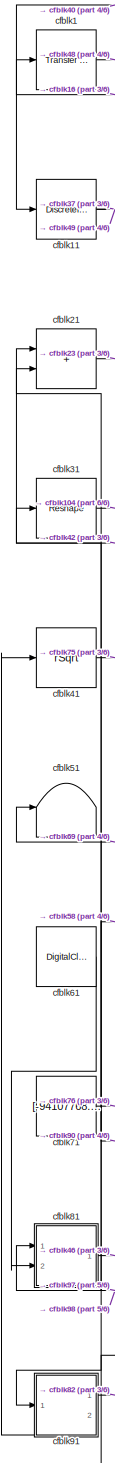
[diagram: root canvas - part 1/6, left side, full height]
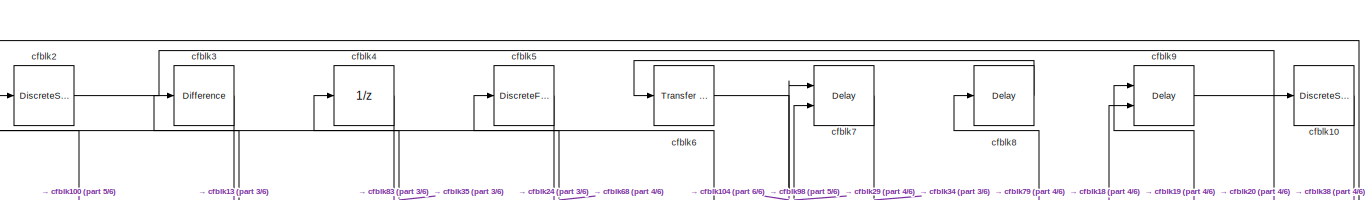
[diagram: root canvas - part 2/6, full width, top band]
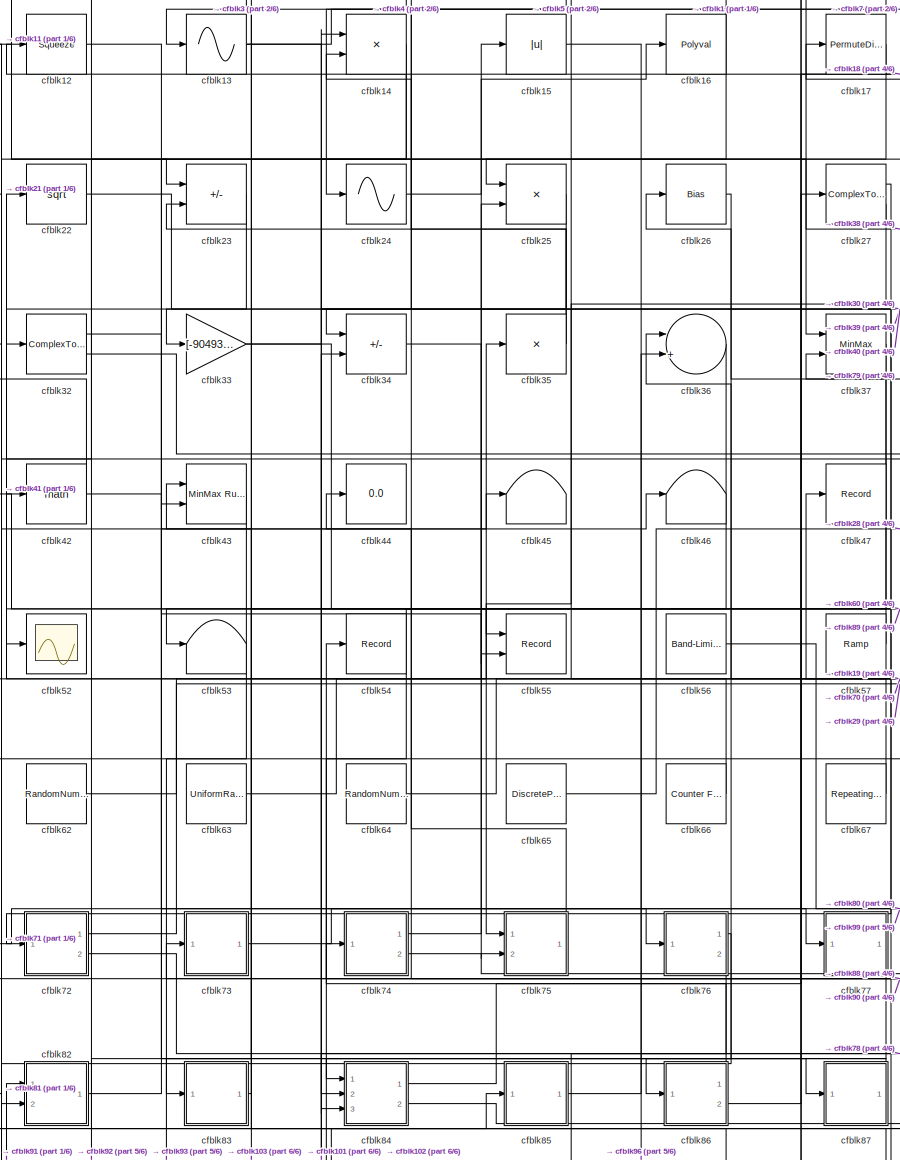
[diagram: root canvas - part 3/6, central region]
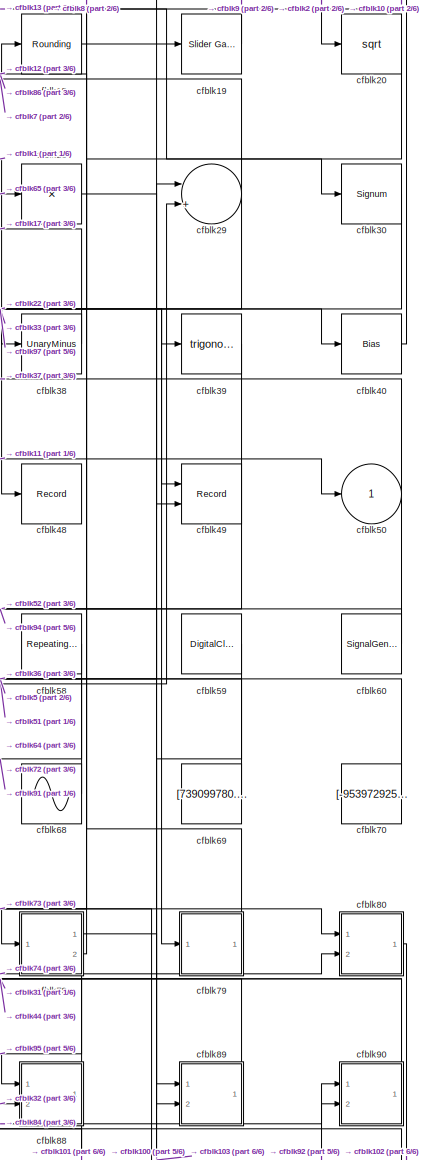
[diagram: root canvas - part 4/6, middle right region]
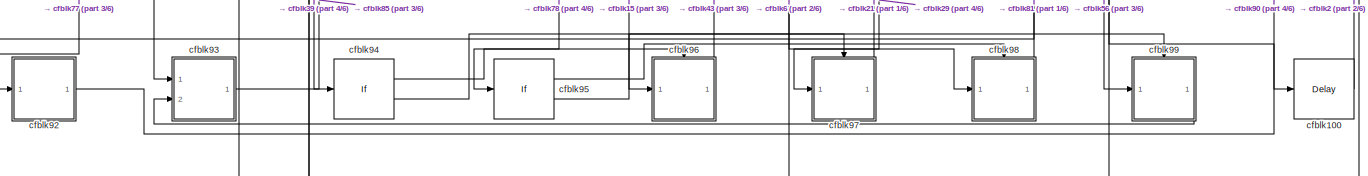
[diagram: root canvas - part 5/6, full width, bottom band]
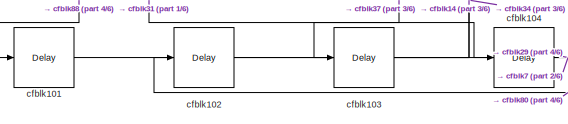
[diagram: root canvas - part 6/6, bottom left region]
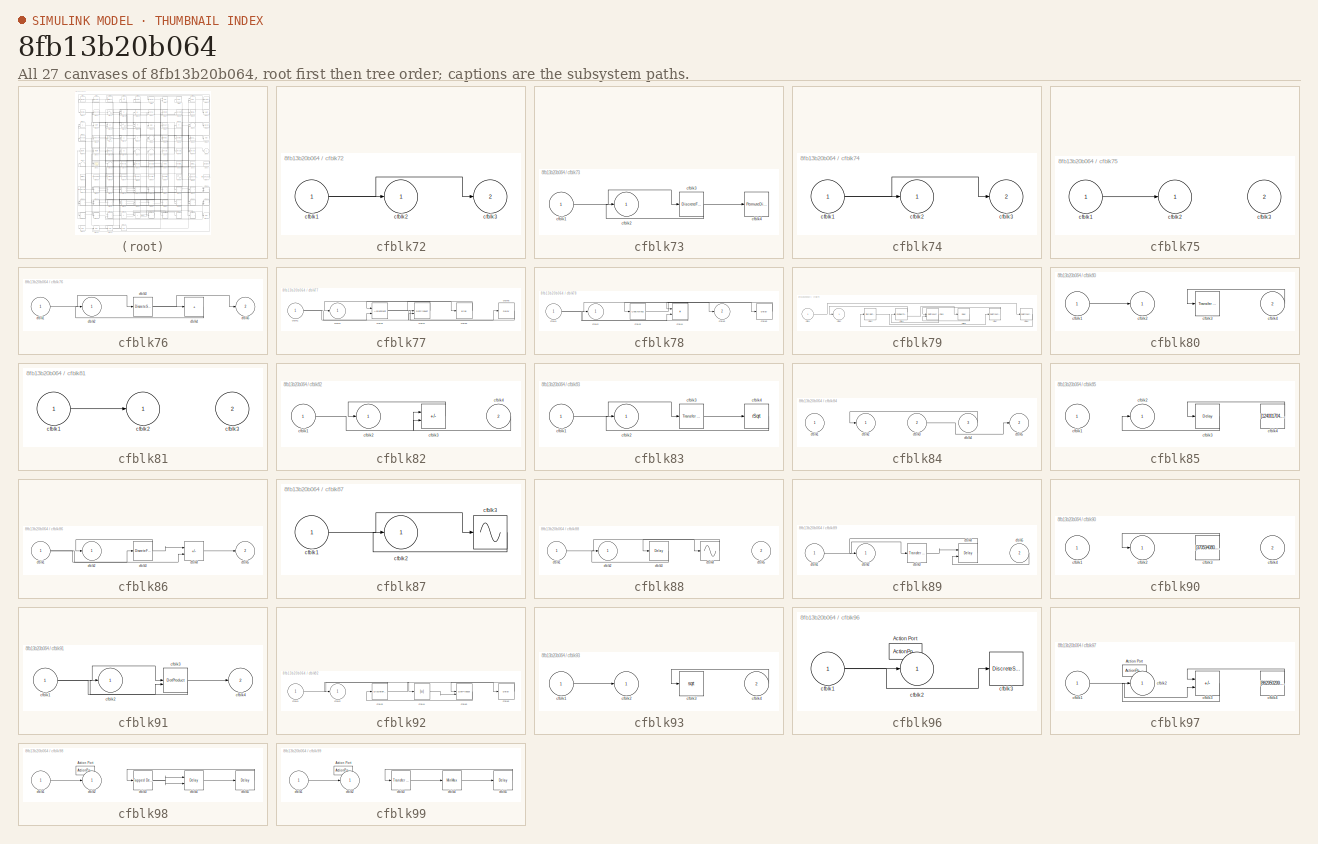
[diagram: thumbnail index - all 27 canvases of the model, root first then tree order]
MODEL slx_8fb13b20b064
KIND model
CONFIG AbsTol = auto
CONFIG EnableMultiTasking = off
CONFIG FixedStep = auto
CONFIG MaxStep = auto
CONFIG MinStep = auto
CONFIG RelTol = 1e-3
CONFIG SampleTimeConstraint = Unconstrained
CONFIG SolverName = VariableStepAuto
CONFIG StartTime = 0.0
CONFIG StopTime = 10.0
BLOCK [Reference] cfblk1  REF=simulink/Discrete/Transfer Fcn
Real Zero
  Ports = [1, 1]
  SourceBlock = simulink/Discrete/Transfer Fcn\nReal Zero
  SourceProductBaseCode = SL
  SourceType = Transfer Fcn Real Zero
BLOCK [DiscreteStateSpace] cfblk10
BLOCK [Delay] cfblk100
  InputPortMap = u0
  Ports = [1, 1]
  SampleTime = 1
BLOCK [Delay] cfblk101
  InputPortMap = u0
  Ports = [1, 1]
  SampleTime = 1
BLOCK [Delay] cfblk102
  InputPortMap = u0
  Ports = [1, 1]
  SampleTime = 1
BLOCK [Delay] cfblk103
  InputPortMap = u0
  Ports = [1, 1]
  SampleTime = 1
BLOCK [Delay] cfblk104
  InputPortMap = u0
  Ports = [1, 1]
  SampleTime = 1
BLOCK [DiscreteIntegrator] cfblk11
  ICPrevOutput = DiscIntNeverNeededParam
  ICPrevScaledInput = DiscIntNeverNeededParam
  InitialConditionSetting = Auto
  Ports = [1, 1]
BLOCK [Squeeze] cfblk12
BLOCK [Sin] cfblk13
  Ports = [1, 1]
  SampleTime = 0
  TimeSource = Use external signal
BLOCK [Product] cfblk14
  Ports = [2, 1]
BLOCK [Abs] cfblk15
  SaturateOnIntegerOverflow = off
BLOCK [Polyval] cfblk16
  Coefs = [ +2.081618890e-019, -1.441693666e-014, +4.719686976e-010, -8.536869453e-006, +1.621573104e-001, -8.087801117e+001 ]
BLOCK [PermuteDimensions] cfblk17
BLOCK [Rounding] cfblk18
BLOCK [Reference] cfblk19  REF=simulink/Math
Operations/Slider
Gain
  Ports = [1, 1]
  SourceBlock = simulink/Math\nOperations/Slider\nGain
  SourceProductBaseCode = SL
  SourceType = Slider Gain
BLOCK [DiscreteStateSpace] cfblk2
BLOCK [Sqrt] cfblk20
BLOCK [Sum] cfblk21
  IconShape = rectangular
  Ports = [2, 1]
BLOCK [Sqrt] cfblk22
BLOCK [Sum] cfblk23
  IconShape = rectangular
  Inputs = +-
  Ports = [2, 1]
BLOCK [Sin] cfblk24
  Ports = [1, 1]
  SampleTime = 0
  TimeSource = Use external signal
BLOCK [Product] cfblk25
  Inputs = **
  Ports = [2, 1]
BLOCK [Bias] cfblk26
  Bias = [244057580.734681]
  SaturateOnIntegerOverflow = off
BLOCK [ComplexToMagnitudeAngle] cfblk27
  Ports = [1, 2]
BLOCK [Product] cfblk28
  Inputs = *
  Ports = [1, 1]
BLOCK [Sum] cfblk29
  Inputs = |++
  Ports = [2, 1]
BLOCK [Reference] cfblk3  REF=simulink/Discrete/Difference
  Ports = [1, 1]
  SourceBlock = simulink/Discrete/Difference
  SourceProductBaseCode = SL
  SourceType = Difference
BLOCK [Signum] cfblk30
BLOCK [Reshape] cfblk31
  Ports = [1, 1]
BLOCK [ComplexToMagnitudeAngle] cfblk32
  Ports = [1, 2]
BLOCK [Gain] cfblk33
  Gain = [-904931611.617092]
BLOCK [Sum] cfblk34
  IconShape = rectangular
  Inputs = -+
  Ports = [2, 1]
BLOCK [Product] cfblk35
  Inputs = *
  Ports = [1, 1]
BLOCK [Sum] cfblk36
  Inputs = |++
  Ports = [2, 1]
BLOCK [MinMax] cfblk37
  Function = max
  Inputs = 2
  Ports = [2, 1]
BLOCK [UnaryMinus] cfblk38
BLOCK [Trigonometry] cfblk39
  Ports = [1, 1]
BLOCK [UnitDelay] cfblk4
  HasFrameUpgradeWarning = on
BLOCK [Bias] cfblk40
  Bias = [435474135.842654]
  SaturateOnIntegerOverflow = off
BLOCK [Sqrt] cfblk41
  AlgorithmType = Newton-Raphson
  Operator = rSqrt
BLOCK [Math] cfblk42
  Ports = [1, 1]
BLOCK [Reference] cfblk43  REF=simulink/Math
Operations/MinMax
Running
Resettable
  Ports = [2, 1]
  SourceBlock = simulink/Math\nOperations/MinMax\nRunning\nResettable
  SourceProductBaseCode = SL
  SourceType = MinMax Running Resettable
BLOCK [Display] cfblk44
  Decimation = 1
  Ports = [1]
BLOCK [Terminator] cfblk45
BLOCK [Terminator] cfblk46
BLOCK [Record] cfblk47
  FileSettingsInternal = {"entries":[{"content":{"excelSettings":{"content":{},"type":"Streamout.ExcelSettings"}},"type":"Streamout.FileSettingStorage","uuid":"f3e6356d-f438-4730-ad7d-e3ec913a7e49"}],"packageUris":["http://schema.mathworks.com/mf0/streamout_blocks/R2020a"],"version":"1.0"}
  Ports = [1]
  SignalsInternal = {"entries":[{"content":{"signals":[{"content":{"blockPath":["sampleModel18/cfblk47"],"channel":[],"dimensions":[1],"domain":"sampleModel18/cfblk47","lineColor":"#a2142f","plots":[1],"port":1,"sid":[""],"signalID":754,"signalName":"cfblk67"},"type":"RecordBlkView.Signal","uuid":"009bd073-cccd-4c9b-abca-75d434df984e"}]},"type":"RecordBlkView.InputSignals","uuid":"1139e3b9-48b1-4a59-a758-ea53e15d3541...<+94ch>
  VisualizationBindings = {"sparklinesplugin":{"info":[{"bindingParametersList":[],"subplotID":1}]}}
BLOCK [Record] cfblk48
  FileSettingsInternal = {"entries":[{"content":{"excelSettings":{"content":{},"type":"Streamout.ExcelSettings"}},"type":"Streamout.FileSettingStorage","uuid":"b3cbeff4-dd58-4c58-a9d8-50ed42b7b65e"}],"packageUris":["http://schema.mathworks.com/mf0/streamout_blocks/R2020a"],"version":"1.0"}
  Ports = [1]
  SignalsInternal = {"entries":[{"content":{"signals":[{"content":{"blockPath":["sampleModel18/cfblk48"],"channel":[],"dimensions":[1],"domain":"sampleModel18/cfblk48","lineColor":"#0072bd","plots":[1],"port":1,"sid":[""],"signalID":730,"signalName":"cfblk1"},"type":"RecordBlkView.Signal","uuid":"f6598a59-ba5a-4366-a23e-158faba5df51"}]},"type":"RecordBlkView.InputSignals","uuid":"46017d82-f691-4fab-a069-d9b27c99119e"...<+93ch>
  VisualizationBindings = {"sparklinesplugin":{"info":[{"bindingParametersList":[],"subplotID":1}]}}
BLOCK [Record] cfblk49
  CompatibilityTag = XY
  FileSettingsInternal = {"entries":[{"content":{"excelSettings":{"content":{},"type":"Streamout.ExcelSettings"}},"type":"Streamout.FileSettingStorage","uuid":"12659b71-1fa3-4812-95e2-9d23bc298638"}],"packageUris":["http://schema.mathworks.com/mf0/streamout_blocks/R2020a"],"version":"1.0"}
  Layout = [1 1]
  Ports = [2]
  SignalsInternal = {"entries":[{"content":{"signals":[{"content":{"blockPath":["sampleModel18/cfblk49"],"channel":[],"dimensions":[1],"domain":"sampleModel18/cfblk49","lineColor":"#a2142f","plots":[1],"port":1,"sid":[""],"signalID":734,"signalName":"cfblk30"},"type":"RecordBlkView.Signal","uuid":"b456594d-3354-477f-bd82-e2a85ebed91f"},{"content":{"blockPath":["sampleModel18/cfblk49"],"channel":[],"dimensions":[1],"d...<+377ch>
  VisualizationBindings = {"xyplotplugin":{"info":[{"series":[{"bindingParametersList":[{"parameter":"X-Axis","signalID":734,"signalName":"cfblk30"},{"parameter":"Y-Axis","signalID":738,"signalName":"cfblk11"}],"seriesID":48500}],"subplotID":1}]}}
BLOCK [DiscreteFir] cfblk5
  InputPortMap = u0
  OutputPortMap = o0
  Ports = [1, 1]
  SampleTime = 1
BLOCK [Outport] cfblk50
BLOCK [Terminator] cfblk51
BLOCK [Scope] cfblk52
  Floating = off
  NumInputPorts = 1
  Ports = [1]
BLOCK [Terminator] cfblk53
BLOCK [Record] cfblk54
  FileSettingsInternal = {"entries":[{"content":{"excelSettings":{"content":{},"type":"Streamout.ExcelSettings"}},"type":"Streamout.FileSettingStorage","uuid":"8c2c62a5-b023-49fb-ade8-a6f0d940a0a6"}],"packageUris":["http://schema.mathworks.com/mf0/streamout_blocks/R2020a"],"version":"1.0"}
  Ports = [1]
  SignalsInternal = {"entries":[{"content":{"signals":[{"content":{"blockPath":["sampleModel18/cfblk54"],"channel":[],"dimensions":[1],"domain":"sampleModel18/cfblk54","lineColor":"#7e2f8e","plots":[1],"port":1,"sid":[""],"signalID":742,"signalName":"cfblk86:1"},"type":"RecordBlkView.Signal","uuid":"cc341828-7772-4fc4-82af-9fa621df96af"}]},"type":"RecordBlkView.InputSignals","uuid":"70a7ec1d-eb72-4259-b67c-d21e35d600...<+96ch>
  VisualizationBindings = {"sparklinesplugin":{"info":[{"bindingParametersList":[],"subplotID":1}]}}
BLOCK [Record] cfblk55
  CompatibilityTag = XY
  FileSettingsInternal = {"entries":[{"content":{"excelSettings":{"content":{},"type":"Streamout.ExcelSettings"}},"type":"Streamout.FileSettingStorage","uuid":"f3fc9ddd-07fd-4d00-b488-08ffa401512c"}],"packageUris":["http://schema.mathworks.com/mf0/streamout_blocks/R2020a"],"version":"1.0"}
  Layout = [1 1]
  Ports = [2]
  SignalsInternal = {"entries":[{"content":{"signals":[{"content":{"blockPath":["sampleModel18/cfblk55"],"channel":[],"dimensions":[1],"domain":"sampleModel18/cfblk55","lineColor":"#a2142f","plots":[1],"port":1,"sid":[""],"signalID":746,"signalName":"cfblk27:2"},"type":"RecordBlkView.Signal","uuid":"ca97d49d-bb3e-4e8a-9ea8-1175d8ca5de3"},{"content":{"blockPath":["sampleModel18/cfblk55"],"channel":[],"dimensions":[1,1...<+383ch>
  VisualizationBindings = {"xyplotplugin":{"info":[{"series":[{"bindingParametersList":[{"parameter":"X-Axis","signalID":746,"signalName":"cfblk27:2"},{"parameter":"Y-Axis","signalID":750,"signalName":"cfblk32:1"}],"seriesID":32887}],"subplotID":1}]}}
BLOCK [Reference] cfblk56  REF=simulink/Sources/Band-Limited
White Noise
  Ports = [0, 1]
  SourceBlock = simulink/Sources/Band-Limited\nWhite Noise
  SourceProductBaseCode = SL
  SourceType = Band-Limited White Noise.
BLOCK [Reference] cfblk57  REF=simulink/Sources/Ramp
  Ports = [0, 1]
  SourceBlock = simulink/Sources/Ramp
  SourceProductBaseCode = SL
  SourceType = Ramp
BLOCK [Reference] cfblk58  REF=simulink/Sources/Repeating
Sequence
  Ports = [0, 1]
  SourceBlock = simulink/Sources/Repeating\nSequence
  SourceProductBaseCode = SL
  SourceType = Repeating table
BLOCK [DigitalClock] cfblk59
BLOCK [Reference] cfblk6  REF=simulink/Discrete/Transfer Fcn
Real Zero
  Ports = [1, 1]
  SourceBlock = simulink/Discrete/Transfer Fcn\nReal Zero
  SourceProductBaseCode = SL
  SourceType = Transfer Fcn Real Zero
BLOCK [SignalGenerator] cfblk60
  Amplitude = [43764762.818563]
  Ports = [0, 1]
  Units = rad/sec
  WaveForm = sawtooth
BLOCK [DigitalClock] cfblk61
BLOCK [RandomNumber] cfblk62
  Mean = [-16646.859650]
  SampleTime = 0.1
  Seed = [598100317.000000]
  Variance = [28029.286662]
BLOCK [UniformRandomNumber] cfblk63
  Maximum = [636865030.513627]
  Minimum = [-9635251432.988684]
  SampleTime = 0.1
  Seed = [32288251.000000]
BLOCK [RandomNumber] cfblk64
  Mean = [-80324.293923]
  SampleTime = 0.1
  Seed = [371163799.000000]
  Variance = [17004.462627]
BLOCK [DiscretePulseGenerator] cfblk65
  Amplitude = [-920476754.757523]
  Period = [70924095.644116]
  PhaseDelay = [6.000000]
  Ports = [0, 1]
  PulseType = Time based
  PulseWidth = 5
BLOCK [Reference] cfblk66  REF=simulink/Sources/Counter
Free-Running
  Ports = [0, 1]
  SourceBlock = simulink/Sources/Counter\nFree-Running
  SourceProductBaseCode = SL
  SourceType = Counter Free-Running
BLOCK [Reference] cfblk67  REF=simulink/Sources/Repeating
Sequence
Stair
  Ports = [0, 1]
  SourceBlock = simulink/Sources/Repeating\nSequence\nStair
  SourceProductBaseCode = SL
  SourceType = Repeating Sequence Stair
BLOCK [Sin] cfblk68
  Amplitude = [-73874148.181670]
  Bias = [-594651401.125389]
  Ports = [0, 1]
  SampleTime = 0
BLOCK [Constant] cfblk69
  SampleTime = 1
  Value = [739099780.098286]
BLOCK [Delay] cfblk7
  InputPortMap = u0,e6
  Ports = [2, 1]
  SampleTime = 1
  ShowEnablePort = on
BLOCK [Constant] cfblk70
  SampleTime = 1
  Value = [-953972925.817118]
BLOCK [Constant] cfblk71
  SampleTime = 1
  Value = [-94107768.657011]
BLOCK [SubSystem] cfblk72
  Ports = [1, 2]
  RequestExecContextInheritance = off
BLOCK [Inport] cfblk72/cfblk1
BLOCK [Outport] cfblk72/cfblk2
BLOCK [Outport] cfblk72/cfblk3
  Port = 2
BLOCK [SubSystem] cfblk73
  Ports = [1, 1]
  RequestExecContextInheritance = off
BLOCK [Inport] cfblk73/cfblk1
BLOCK [Outport] cfblk73/cfblk2
BLOCK [DiscreteFilter] cfblk73/cfblk3
  InputPortMap = u0
  Ports = [1, 1]
  SampleTime = 1
BLOCK [PermuteDimensions] cfblk73/cfblk4
BLOCK [SubSystem] cfblk74
  Ports = [1, 2]
  RequestExecContextInheritance = off
BLOCK [Inport] cfblk74/cfblk1
BLOCK [Outport] cfblk74/cfblk2
BLOCK [Outport] cfblk74/cfblk3
  Port = 2
BLOCK [SubSystem] cfblk75
  Ports = [2, 1]
  RequestExecContextInheritance = off
BLOCK [Inport] cfblk75/cfblk1
BLOCK [Outport] cfblk75/cfblk2
BLOCK [Inport] cfblk75/cfblk3
  Port = 2
BLOCK [SubSystem] cfblk76
  Ports = [1, 2]
  RequestExecContextInheritance = off
BLOCK [Inport] cfblk76/cfblk1
BLOCK [Outport] cfblk76/cfblk2
BLOCK [DiscreteStateSpace] cfblk76/cfblk3
BLOCK [Sum] cfblk76/cfblk4
  IconShape = rectangular
  Inputs = +
  Ports = [1, 1]
BLOCK [Outport] cfblk76/cfblk5
  Port = 2
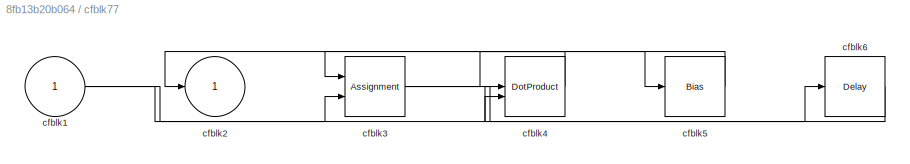
BLOCK [SubSystem] cfblk77
  Ports = [1, 1]
  RequestExecContextInheritance = off
BLOCK [Inport] cfblk77/cfblk1
BLOCK [Outport] cfblk77/cfblk2
BLOCK [Assignment] cfblk77/cfblk3
  DiagnosticForDimensions = Warning
  IndexOptions = Index vector (dialog)
  Indices = 1
  OutputSizes = 1
  Ports = [2, 1]
BLOCK [DotProduct] cfblk77/cfblk4
  OutDataTypeStr = Inherit: Inherit via internal rule
BLOCK [Bias] cfblk77/cfblk5
  Bias = [780550911.093952]
  SaturateOnIntegerOverflow = off
BLOCK [Delay] cfblk77/cfblk6
  InputPortMap = u0
  Ports = [1, 1]
  SampleTime = 1
BLOCK [SubSystem] cfblk78
  Ports = [1, 2]
  RequestExecContextInheritance = off
BLOCK [Inport] cfblk78/cfblk1
BLOCK [Outport] cfblk78/cfblk2
BLOCK [UnaryMinus] cfblk78/cfblk3
BLOCK [Product] cfblk78/cfblk4
  Ports = [2, 1]
BLOCK [Outport] cfblk78/cfblk5
  Port = 2
BLOCK [Delay] cfblk78/cfblk6
  InputPortMap = u0
  Ports = [1, 1]
  SampleTime = 1
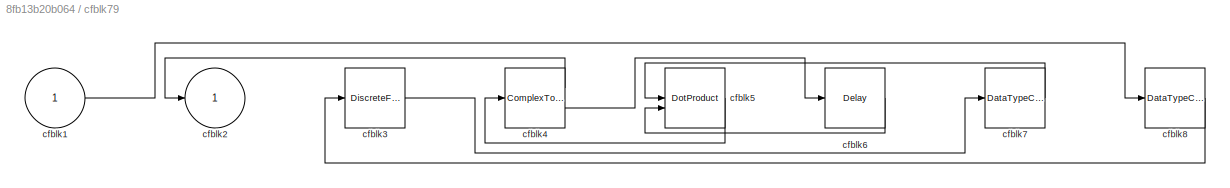
BLOCK [SubSystem] cfblk79
  Ports = [1, 1]
  RequestExecContextInheritance = off
BLOCK [Inport] cfblk79/cfblk1
BLOCK [Outport] cfblk79/cfblk2
BLOCK [DiscreteFilter] cfblk79/cfblk3
  InputPortMap = u0
  Ports = [1, 1]
  SampleTime = 1
BLOCK [ComplexToMagnitudeAngle] cfblk79/cfblk4
  Ports = [1, 2]
BLOCK [DotProduct] cfblk79/cfblk5
  OutDataTypeStr = Inherit: Inherit via internal rule
BLOCK [Delay] cfblk79/cfblk6
  InputPortMap = u0
  Ports = [1, 1]
  SampleTime = 1
BLOCK [DataTypeConversion] cfblk79/cfblk7
  RndMeth = Floor
  SaturateOnIntegerOverflow = off
BLOCK [DataTypeConversion] cfblk79/cfblk8
  RndMeth = Floor
  SaturateOnIntegerOverflow = off
BLOCK [Delay] cfblk8
  InputPortMap = u0
  Ports = [1, 1]
  SampleTime = 1
BLOCK [SubSystem] cfblk80
  Ports = [2, 1]
  RequestExecContextInheritance = off
BLOCK [Inport] cfblk80/cfblk1
BLOCK [Outport] cfblk80/cfblk2
BLOCK [Reference] cfblk80/cfblk3  REF=simulink/Discrete/Transfer Fcn
Real Zero
  Ports = [1, 1]
  SourceBlock = simulink/Discrete/Transfer Fcn\nReal Zero
  SourceProductBaseCode = SL
  SourceType = Transfer Fcn Real Zero
BLOCK [Inport] cfblk80/cfblk4
  Port = 2
BLOCK [SubSystem] cfblk81
  Ports = [2, 1]
  RequestExecContextInheritance = off
BLOCK [Inport] cfblk81/cfblk1
BLOCK [Outport] cfblk81/cfblk2
BLOCK [Inport] cfblk81/cfblk3
  Port = 2
BLOCK [SubSystem] cfblk82
  Ports = [2, 1]
  RequestExecContextInheritance = off
BLOCK [Inport] cfblk82/cfblk1
BLOCK [Outport] cfblk82/cfblk2
BLOCK [Sum] cfblk82/cfblk3
  IconShape = rectangular
  Inputs = --
  Ports = [2, 1]
BLOCK [Inport] cfblk82/cfblk4
  Port = 2
BLOCK [SubSystem] cfblk83
  Ports = [1, 1]
  RequestExecContextInheritance = off
BLOCK [Inport] cfblk83/cfblk1
BLOCK [Outport] cfblk83/cfblk2
BLOCK [Reference] cfblk83/cfblk3  REF=simulink/Discrete/Transfer Fcn
Real Zero
  Ports = [1, 1]
  SourceBlock = simulink/Discrete/Transfer Fcn\nReal Zero
  SourceProductBaseCode = SL
  SourceType = Transfer Fcn Real Zero
BLOCK [Sqrt] cfblk83/cfblk4
  AlgorithmType = Newton-Raphson
  Operator = rSqrt
BLOCK [SubSystem] cfblk84
  Ports = [3, 2]
  RequestExecContextInheritance = off
BLOCK [Inport] cfblk84/cfblk1
BLOCK [Outport] cfblk84/cfblk2
BLOCK [Inport] cfblk84/cfblk3
  Port = 2
BLOCK [Inport] cfblk84/cfblk4
  Port = 3
BLOCK [Outport] cfblk84/cfblk5
  Port = 2
BLOCK [SubSystem] cfblk85
  Ports = [1, 1]
  RequestExecContextInheritance = off
BLOCK [Inport] cfblk85/cfblk1
BLOCK [Outport] cfblk85/cfblk2
BLOCK [Delay] cfblk85/cfblk3
  InputPortMap = u0
  Ports = [1, 1]
  SampleTime = 1
BLOCK [Constant] cfblk85/cfblk4
  SampleTime = 1
  Value = [124001704.281891]
BLOCK [SubSystem] cfblk86
  Ports = [1, 2]
  RequestExecContextInheritance = off
BLOCK [Inport] cfblk86/cfblk1
BLOCK [Outport] cfblk86/cfblk2
BLOCK [DiscreteFilter] cfblk86/cfblk3
  InputPortMap = u0
  Ports = [1, 1]
  SampleTime = 1
BLOCK [Sum] cfblk86/cfblk4
  IconShape = rectangular
  Inputs = --
  Ports = [2, 1]
BLOCK [Outport] cfblk86/cfblk5
  Port = 2
BLOCK [SubSystem] cfblk87
  Ports = [1, 1]
  RequestExecContextInheritance = off
BLOCK [Inport] cfblk87/cfblk1
BLOCK [Outport] cfblk87/cfblk2
BLOCK [Sin] cfblk87/cfblk3
  Ports = [1, 1]
  SampleTime = 0
  TimeSource = Use external signal
BLOCK [SubSystem] cfblk88
  Ports = [2, 1]
  RequestExecContextInheritance = off
BLOCK [Inport] cfblk88/cfblk1
BLOCK [Outport] cfblk88/cfblk2
BLOCK [Delay] cfblk88/cfblk3
  InputPortMap = u0
  Ports = [1, 1]
  SampleTime = 1
BLOCK [Sin] cfblk88/cfblk4
  Ports = [1, 1]
  SampleTime = 0
  TimeSource = Use external signal
BLOCK [Inport] cfblk88/cfblk5
  Port = 2
BLOCK [SubSystem] cfblk89
  Ports = [2, 1]
  RequestExecContextInheritance = off
BLOCK [Inport] cfblk89/cfblk1
BLOCK [Outport] cfblk89/cfblk2
BLOCK [Reference] cfblk89/cfblk3  REF=simulink/Discrete/Transfer Fcn
Real Zero
  Ports = [1, 1]
  SourceBlock = simulink/Discrete/Transfer Fcn\nReal Zero
  SourceProductBaseCode = SL
  SourceType = Transfer Fcn Real Zero
BLOCK [Delay] cfblk89/cfblk4
  InputPortMap = u0,e6
  Ports = [2, 1]
  SampleTime = 1
  ShowEnablePort = on
BLOCK [Inport] cfblk89/cfblk5
  Port = 2
BLOCK [Delay] cfblk9
  DelayLengthSource = Input port
  InputPortMap = u0,p1
  Ports = [2, 1]
  SampleTime = 1
BLOCK [SubSystem] cfblk90
  Ports = [2, 1]
  RequestExecContextInheritance = off
BLOCK [Inport] cfblk90/cfblk1
BLOCK [Outport] cfblk90/cfblk2
BLOCK [Constant] cfblk90/cfblk3
  SampleTime = 1
  Value = [370534080.999301]
BLOCK [Inport] cfblk90/cfblk4
  Port = 2
BLOCK [SubSystem] cfblk91
  Ports = [1, 2]
  RequestExecContextInheritance = off
BLOCK [Inport] cfblk91/cfblk1
BLOCK [Outport] cfblk91/cfblk2
BLOCK [DotProduct] cfblk91/cfblk3
  OutDataTypeStr = Inherit: Inherit via internal rule
BLOCK [Outport] cfblk91/cfblk4
  Port = 2
BLOCK [SubSystem] cfblk92
  Ports = [1, 1]
  RequestExecContextInheritance = off
BLOCK [Inport] cfblk92/cfblk1
BLOCK [Outport] cfblk92/cfblk2
BLOCK [DiscreteFir] cfblk92/cfblk3
  InputPortMap = u0
  OutputPortMap = o0
  Ports = [1, 1]
  SampleTime = 1
BLOCK [Abs] cfblk92/cfblk4
  SaturateOnIntegerOverflow = off
BLOCK [DotProduct] cfblk92/cfblk5
  OutDataTypeStr = Inherit: Inherit via internal rule
BLOCK [Delay] cfblk92/cfblk6
  InputPortMap = u0
  Ports = [1, 1]
  SampleTime = 1
BLOCK [SubSystem] cfblk93
  Ports = [2, 1]
  RequestExecContextInheritance = off
BLOCK [Inport] cfblk93/cfblk1
BLOCK [Outport] cfblk93/cfblk2
BLOCK [Sqrt] cfblk93/cfblk3
BLOCK [Inport] cfblk93/cfblk4
  Port = 2
BLOCK [If] cfblk94
  IfExpression = u1 >= 0
  Ports = [1, 2]
  SampleTime = 1
BLOCK [If] cfblk95
  IfExpression = u1 >= 0
  Ports = [1, 2]
  SampleTime = 1
BLOCK [SubSystem] cfblk96
  Ports = [1, 1, 0, 0, 0, 0, 0, 1]
  RequestExecContextInheritance = off
  TreatAsAtomicUnit = on
BLOCK [ActionPort] cfblk96/Action Port
  ActionPortLabel = if(u1 >= 0)
BLOCK [Inport] cfblk96/cfblk1
BLOCK [Outport] cfblk96/cfblk2
BLOCK [DiscreteStateSpace] cfblk96/cfblk3
  SampleTime = -1
BLOCK [SubSystem] cfblk97
  Ports = [1, 1, 0, 0, 0, 0, 0, 1]
  RequestExecContextInheritance = off
  TreatAsAtomicUnit = on
BLOCK [ActionPort] cfblk97/Action Port
  ActionPortLabel = else
BLOCK [Inport] cfblk97/cfblk1
BLOCK [Outport] cfblk97/cfblk2
BLOCK [Sum] cfblk97/cfblk3
  IconShape = rectangular
  Inputs = +-
  Ports = [2, 1]
BLOCK [Constant] cfblk97/cfblk4
  SampleTime = 1
  Value = [862950299.846338]
BLOCK [SubSystem] cfblk98
  Ports = [1, 1, 0, 0, 0, 0, 0, 1]
  RequestExecContextInheritance = off
  TreatAsAtomicUnit = on
BLOCK [ActionPort] cfblk98/Action Port
  ActionPortLabel = if(u1 >= 0)
BLOCK [Inport] cfblk98/cfblk1
BLOCK [Outport] cfblk98/cfblk2
BLOCK [Reference] cfblk98/cfblk3  REF=simulink/Discrete/Tapped Delay
  Ports = [1, 1]
  SourceBlock = simulink/Discrete/Tapped Delay
  SourceProductBaseCode = SL
  SourceType = Tapped Delay Line
BLOCK [Delay] cfblk98/cfblk4
  InputPortMap = u0,e6
  Ports = [2, 1]
  ShowEnablePort = on
BLOCK [Delay] cfblk98/cfblk5
  InputPortMap = u0
  Ports = [1, 1]
BLOCK [SubSystem] cfblk99
  Ports = [1, 1, 0, 0, 0, 0, 0, 1]
  RequestExecContextInheritance = off
  TreatAsAtomicUnit = on
BLOCK [ActionPort] cfblk99/Action Port
  ActionPortLabel = else
BLOCK [Inport] cfblk99/cfblk1
BLOCK [Outport] cfblk99/cfblk2
BLOCK [Reference] cfblk99/cfblk3  REF=simulink/Discrete/Transfer Fcn
First Order
  Ports = [1, 1]
  SourceBlock = simulink/Discrete/Transfer Fcn\nFirst Order
  SourceProductBaseCode = SL
  SourceType = First Order Transfer Fcn
BLOCK [MinMax] cfblk99/cfblk4
  Function = max
  Ports = [1, 1]
BLOCK [Delay] cfblk99/cfblk5
  InputPortMap = u0
  Ports = [1, 1]
LINE cfblk100:1 -> cfblk2:1
LINE cfblk101:1 -> cfblk34:2
LINE cfblk102:1 -> cfblk14:1
LINE cfblk103:1 -> cfblk29:1
LINE cfblk104:1 -> cfblk7:1
LINE cfblk10:1 -> cfblk38:1
NET cfblk11:1 -> cfblk37:1, cfblk49:2
LINE cfblk12:1 -> cfblk87:1
NET cfblk13:1 -> cfblk30:1, cfblk39:1
NET cfblk14:1 -> cfblk42:1, cfblk43:2
LINE cfblk15:1 -> cfblk96:1
NET cfblk16:1 -> cfblk1:1, cfblk84:3
LINE cfblk17:1 -> cfblk25:1
LINE cfblk18:1 -> cfblk9:2
LINE cfblk19:1 -> cfblk9:1
LINE cfblk1:1 -> cfblk48:1
LINE cfblk20:1 -> cfblk78:1
LINE cfblk21:1 -> cfblk23:1
LINE cfblk22:1 -> cfblk79:1
LINE cfblk23:1 -> cfblk33:1
LINE cfblk24:1 -> cfblk16:1
LINE cfblk25:1 -> cfblk32:1
LINE cfblk26:1 -> cfblk86:1
LINE cfblk27:1 -> cfblk72:1
LINE cfblk27:2 -> cfblk55:1
LINE cfblk28:1 -> cfblk50:1
NET cfblk29:1 -> cfblk7:2, cfblk97:1
LINE cfblk2:1 -> cfblk20:1
LINE cfblk30:1 -> cfblk49:1
LINE cfblk31:1 -> cfblk104:1
LINE cfblk32:1 -> cfblk55:2
LINE cfblk32:2 -> cfblk88:2
NET cfblk33:1 -> cfblk40:1, cfblk89:1
LINE cfblk34:1 -> cfblk75:2
NET cfblk35:1 -> cfblk3:1, cfblk4:1
LINE cfblk36:1 -> cfblk53:1
LINE cfblk37:1 -> cfblk103:1
LINE cfblk38:1 -> cfblk17:1
LINE cfblk39:1 -> cfblk94:1
LINE cfblk3:1 -> cfblk13:1
LINE cfblk40:1 -> cfblk11:1
LINE cfblk41:1 -> cfblk75:1
NET cfblk42:1 -> cfblk21:1, cfblk77:1
LINE cfblk43:1 -> cfblk93:1
LINE cfblk4:1 -> cfblk83:1
LINE cfblk56:1 -> cfblk99:1
LINE cfblk57:1 -> cfblk26:1
LINE cfblk58:1 -> cfblk91:1
LINE cfblk59:1 -> cfblk89:2
LINE cfblk5:1 -> cfblk24:1
NET cfblk60:1 -> cfblk37:2, cfblk52:1
LINE cfblk61:1 -> cfblk81:2
LINE cfblk62:1 -> cfblk15:1
LINE cfblk63:1 -> cfblk35:1
LINE cfblk64:1 -> cfblk19:1
LINE cfblk65:1 -> cfblk28:1
LINE cfblk66:1 -> cfblk22:1
LINE cfblk67:1 -> cfblk47:1
LINE cfblk68:1 -> cfblk5:1
LINE cfblk69:1 -> cfblk51:1
LINE cfblk6:1 -> cfblk98:1
LINE cfblk70:1 -> cfblk36:1
LINE cfblk71:1 -> cfblk76:1
NET cfblk72/cfblk1:1 -> cfblk72/cfblk2:1, cfblk72/cfblk3:1
LINE cfblk72:1 -> cfblk29:2
LINE cfblk72:2 -> cfblk88:1
LINE cfblk73/cfblk1:1 -> cfblk73/cfblk3:1
NET cfblk73/cfblk3:1 -> cfblk73/cfblk2:1, cfblk73/cfblk4:1
LINE cfblk73:1 -> cfblk80:1
NET cfblk74/cfblk1:1 -> cfblk74/cfblk2:1, cfblk74/cfblk3:1
LINE cfblk74:1 -> cfblk25:2
LINE cfblk74:2 -> cfblk80:2
LINE cfblk75/cfblk1:1 -> cfblk75/cfblk2:1
LINE cfblk75:1 -> cfblk14:2
LINE cfblk76/cfblk1:1 -> cfblk76/cfblk3:1
NET cfblk76/cfblk3:1 -> cfblk76/cfblk4:1, cfblk76/cfblk5:1
LINE cfblk76/cfblk4:1 -> cfblk76/cfblk2:1
LINE cfblk76:1 -> cfblk82:2
LINE cfblk76:2 -> cfblk84:2
NET cfblk77/cfblk1:1 -> cfblk77/cfblk3:2, cfblk77/cfblk4:1
NET cfblk77/cfblk3:1 -> cfblk77/cfblk5:1, cfblk77/cfblk6:1
LINE cfblk77/cfblk4:1 -> cfblk77/cfblk3:1
LINE cfblk77/cfblk5:1 -> cfblk77/cfblk2:1
LINE cfblk77/cfblk6:1 -> cfblk77/cfblk4:2
LINE cfblk77:1 -> cfblk92:1
NET cfblk78/cfblk1:1 -> cfblk78/cfblk4:2, cfblk78/cfblk5:1
LINE cfblk78/cfblk3:1 -> cfblk78/cfblk6:1
NET cfblk78/cfblk4:1 -> cfblk78/cfblk2:1, cfblk78/cfblk3:1
LINE cfblk78/cfblk6:1 -> cfblk78/cfblk4:1
LINE cfblk78:1 -> cfblk100:1
NET cfblk78:2 -> cfblk12:1, cfblk95:1
LINE cfblk79/cfblk1:1 -> cfblk79/cfblk8:1
LINE cfblk79/cfblk3:1 -> cfblk79/cfblk7:1
LINE cfblk79/cfblk4:1 -> cfblk79/cfblk2:1
LINE cfblk79/cfblk4:2 -> cfblk79/cfblk6:1
LINE cfblk79/cfblk5:1 -> cfblk79/cfblk4:1
LINE cfblk79/cfblk6:1 -> cfblk79/cfblk5:2
LINE cfblk79/cfblk7:1 -> cfblk79/cfblk5:1
LINE cfblk79/cfblk8:1 -> cfblk79/cfblk3:1
LINE cfblk79:1 -> cfblk8:1
LINE cfblk7:1 -> cfblk34:1
LINE cfblk80/cfblk1:1 -> cfblk80/cfblk2:1
LINE cfblk80/cfblk4:1 -> cfblk80/cfblk3:1
LINE cfblk80:1 -> cfblk102:1
LINE cfblk81/cfblk1:1 -> cfblk81/cfblk2:1
LINE cfblk81:1 -> cfblk46:1
LINE cfblk82/cfblk1:1 -> cfblk82/cfblk3:2
LINE cfblk82/cfblk3:1 -> cfblk82/cfblk2:1
LINE cfblk82/cfblk4:1 -> cfblk82/cfblk3:1
LINE cfblk82:1 -> cfblk45:1
LINE cfblk83/cfblk1:1 -> cfblk83/cfblk3:1
LINE cfblk83/cfblk3:1 -> cfblk83/cfblk4:1
LINE cfblk83/cfblk4:1 -> cfblk83/cfblk2:1
LINE cfblk83:1 -> cfblk23:2
LINE cfblk84/cfblk3:1 -> cfblk84/cfblk5:1
LINE cfblk84/cfblk4:1 -> cfblk84/cfblk2:1
LINE cfblk84:1 -> cfblk27:1
LINE cfblk84:2 -> cfblk90:2
LINE cfblk85/cfblk3:1 -> cfblk85/cfblk2:1
LINE cfblk85/cfblk4:1 -> cfblk85/cfblk3:1
LINE cfblk85:1 -> cfblk36:2
NET cfblk86/cfblk1:1 -> cfblk86/cfblk3:1, cfblk86/cfblk4:2
NET cfblk86/cfblk3:1 -> cfblk86/cfblk2:1, cfblk86/cfblk4:1
LINE cfblk86/cfblk4:1 -> cfblk86/cfblk5:1
LINE cfblk86:1 -> cfblk54:1
LINE cfblk86:2 -> cfblk18:1
LINE cfblk87/cfblk1:1 -> cfblk87/cfblk3:1
LINE cfblk87/cfblk3:1 -> cfblk87/cfblk2:1
LINE cfblk87:1 -> cfblk84:1
LINE cfblk88/cfblk1:1 -> cfblk88/cfblk4:1
LINE cfblk88/cfblk3:1 -> cfblk88/cfblk2:1
LINE cfblk88/cfblk4:1 -> cfblk88/cfblk3:1
NET cfblk88:1 -> cfblk101:1, cfblk44:1
LINE cfblk89/cfblk1:1 -> cfblk89/cfblk3:1
LINE cfblk89/cfblk3:1 -> cfblk89/cfblk4:1
LINE cfblk89/cfblk4:1 -> cfblk89/cfblk2:1
LINE cfblk89/cfblk5:1 -> cfblk89/cfblk4:2
LINE cfblk89:1 -> cfblk74:1
LINE cfblk8:1 -> cfblk6:1
LINE cfblk90/cfblk3:1 -> cfblk90/cfblk2:1
NET cfblk90:1 -> cfblk31:1, cfblk73:1
NET cfblk91/cfblk1:1 -> cfblk91/cfblk3:1, cfblk91/cfblk3:2
NET cfblk91/cfblk3:1 -> cfblk91/cfblk2:1, cfblk91/cfblk4:1
LINE cfblk91:1 -> cfblk82:1
LINE cfblk91:2 -> cfblk41:1
LINE cfblk92/cfblk1:1 -> cfblk92/cfblk4:1
NET cfblk92/cfblk3:1 -> cfblk92/cfblk2:1, cfblk92/cfblk6:1
LINE cfblk92/cfblk4:1 -> cfblk92/cfblk5:2
LINE cfblk92/cfblk5:1 -> cfblk92/cfblk3:1
LINE cfblk92/cfblk6:1 -> cfblk92/cfblk5:1
LINE cfblk92:1 -> cfblk90:1
LINE cfblk93/cfblk1:1 -> cfblk93/cfblk2:1
LINE cfblk93/cfblk4:1 -> cfblk93/cfblk3:1
LINE cfblk93:1 -> cfblk85:1
LINE cfblk94:1 -> cfblk96:ifaction
LINE cfblk94:2 -> cfblk97:ifaction
LINE cfblk95:1 -> cfblk98:ifaction
LINE cfblk95:2 -> cfblk99:ifaction
NET cfblk96/cfblk1:1 -> cfblk96/cfblk2:1, cfblk96/cfblk3:1
LINE cfblk96:1 -> cfblk43:1
LINE cfblk97/cfblk1:1 -> cfblk97/cfblk3:2
LINE cfblk97/cfblk3:1 -> cfblk97/cfblk2:1
LINE cfblk97/cfblk4:1 -> cfblk97/cfblk3:1
LINE cfblk97:1 -> cfblk21:2
LINE cfblk98/cfblk1:1 -> cfblk98/cfblk2:1
NET cfblk98/cfblk3:1 -> cfblk98/cfblk4:1, cfblk98/cfblk4:2
LINE cfblk98/cfblk4:1 -> cfblk98/cfblk5:1
LINE cfblk98/cfblk5:1 -> cfblk98/cfblk3:1
LINE cfblk98:1 -> cfblk81:1
LINE cfblk99/cfblk1:1 -> cfblk99/cfblk2:1
LINE cfblk99/cfblk3:1 -> cfblk99/cfblk4:1
LINE cfblk99/cfblk4:1 -> cfblk99/cfblk5:1
LINE cfblk99/cfblk5:1 -> cfblk99/cfblk3:1
LINE cfblk99:1 -> cfblk93:2
LINE cfblk9:1 -> cfblk10:1
note: NET lines group one-source signal fan-out (src -> all destinations, sorted); 1:1 wires keep LINE
